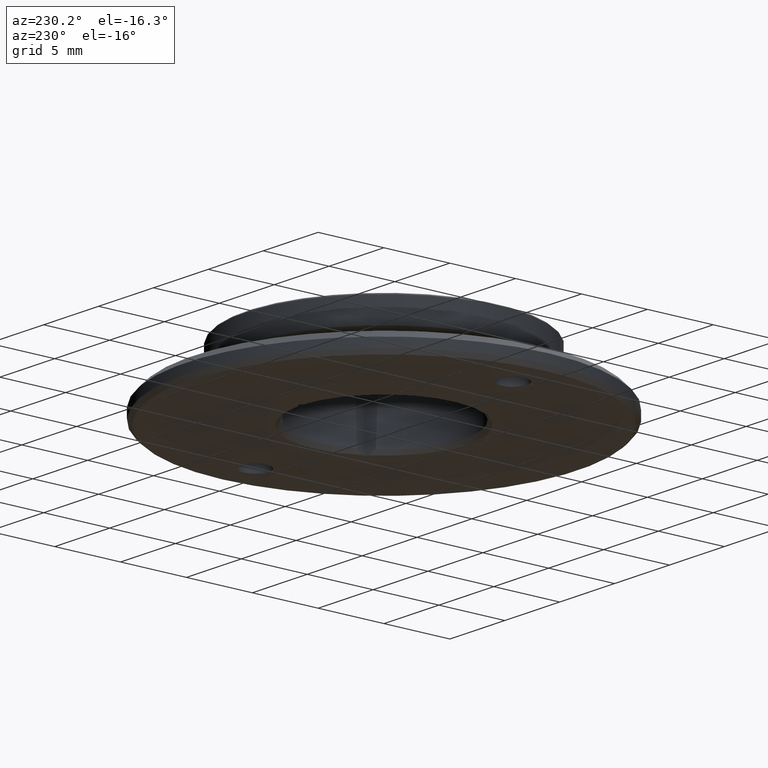
[diagram: clean part render]
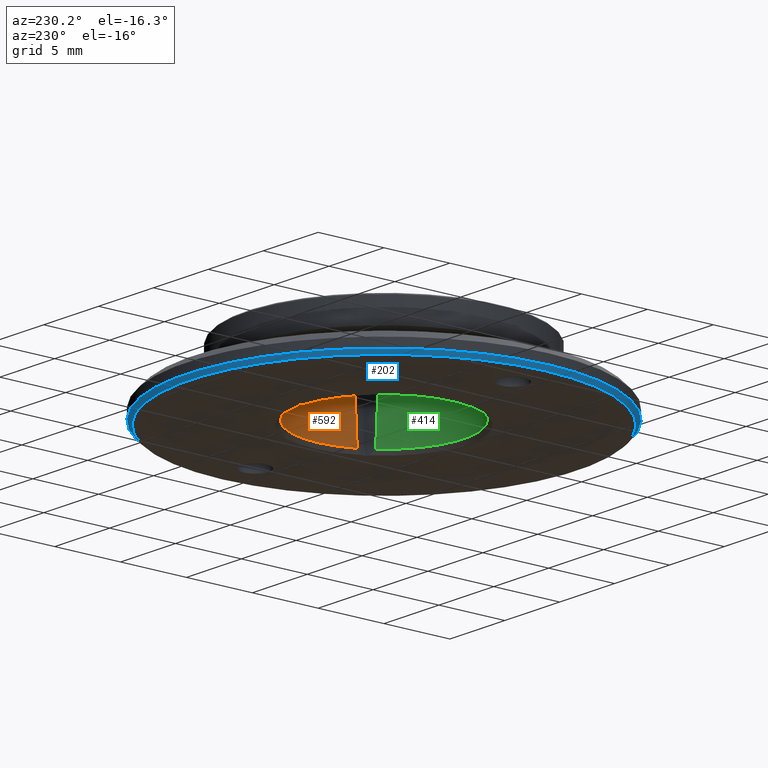
[diagram: same view with three faces highlighted in distinct colors, each labeled with its STEP entity id]
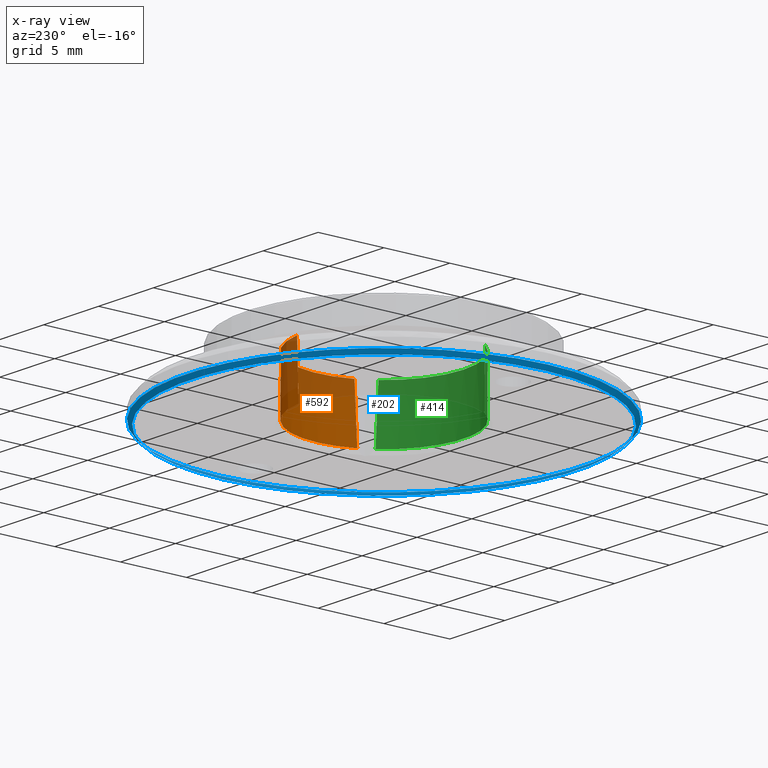
[diagram: x-ray of the same camera — body ghosted, the three highlighted faces saturated]
A machine part, auxiliary view with three faces highlighted in distinct colors.
The next image is the same camera in x-ray (body ghosted, the three faces saturated) — at least one of them is partly hidden behind the body in this view.
Their STEP definitions:

[orange] entity #592 — the highlighted cylindrical surface (partial cylindrical patch) has radius 6.05 mm, axis along (-0, -0, 1).
#29 = CARTESIAN_POINT ( 'NONE',  ( 0.5449629645617796170, 6.025405825938700666, -2.199999999999994404 ) ) ;
#38 = EDGE_CURVE ( 'NONE', #602, #643, #858, .T. ) ;
#46 = DIRECTION ( 'NONE',  ( 1.000000000000000000, 0.0000000000000000000, 0.0000000000000000000 ) ) ;
#49 = EDGE_LOOP ( 'NONE', ( #716, #487, #470, #235 ) ) ;
#77 = CARTESIAN_POINT ( 'NONE',  ( 0.7069815226384784657, 6.008550334868450804, 2.000000000000015099 ) ) ;
#103 = DIRECTION ( 'NONE',  ( -0.0000000000000000000, -0.0000000000000000000, 1.000000000000000000 ) ) ;
#129 = VERTEX_POINT ( 'NONE', #29 ) ;
#147 = EDGE_CURVE ( 'NONE', #602, #129, #171, .T. ) ;
#171 = CIRCLE ( 'NONE', #387, 6.049999999999999822 ) ;
#176 = DIRECTION ( 'NONE',  ( -0.0000000000000000000, -0.0000000000000000000, 1.000000000000000000 ) ) ;
#228 = CARTESIAN_POINT ( 'NONE',  ( 5.490635995654580270, -2.540751141537131108, -2.199999999999994404 ) ) ;
#235 = ORIENTED_EDGE ( 'NONE', *, *, #38, .T. ) ;
#238 = CARTESIAN_POINT ( 'NONE',  ( 0.0000000000000000000, 0.0000000000000000000, 3.500000000000002220 ) ) ;
#304 = CARTESIAN_POINT ( 'NONE',  ( 0.0000000000000000000, 0.0000000000000000000, 2.000000000000000888 ) ) ;
#307 = CARTESIAN_POINT ( 'NONE',  ( 5.490635995654580270, -2.540751141537131108, -2.199999999999994404 ) ) ;
#387 = AXIS2_PLACEMENT_3D ( 'NONE', #857, #834, #790 ) ;
#398 = EDGE_CURVE ( 'NONE', #399, #129, #464, .T. ) ;
#399 = VERTEX_POINT ( 'NONE', #488 ) ;
#464 =( BOUNDED_CURVE ( )  B_SPLINE_CURVE ( 3, ( #77, #480, #616, #837 ),
 .UNSPECIFIED., .F., .T. ) 
 B_SPLINE_CURVE_WITH_KNOTS ( ( 4, 4 ),
 ( 0.6682741115155272915, 0.6951993832339711243 ),
 .UNSPECIFIED. ) 
 CURVE ( )  GEOMETRIC_REPRESENTATION_ITEM ( )  RATIONAL_B_SPLINE_CURVE ( ( 1.000000000000000000, 0.9999395867243703329, 0.9999395867243703329, 1.000000000000000000 ) ) 
 REPRESENTATION_ITEM ( '' )  );
#470 = ORIENTED_EDGE ( 'NONE', *, *, #147, .F. ) ;
#480 = CARTESIAN_POINT ( 'NONE',  ( 0.6530526101212259515, 6.014895749745719833, 0.6232676519637768697 ) ) ;
#487 = ORIENTED_EDGE ( 'NONE', *, *, #398, .T. ) ;
#488 = CARTESIAN_POINT ( 'NONE',  ( 0.7069815226384784657, 6.008550334868450804, 2.000000000000015099 ) ) ;
#501 = EDGE_CURVE ( 'NONE', #643, #399, #776, .T. ) ;
#504 = DIRECTION ( 'NONE',  ( 1.000000000000000000, 0.0000000000000000000, 0.0000000000000000000 ) ) ;
#579 = FACE_OUTER_BOUND ( 'NONE', #49, .T. ) ;
#582 = CARTESIAN_POINT ( 'NONE',  ( 5.513440156126522496, -2.491470697541275037, -0.7768169317320064993 ) ) ;
#592 = ADVANCED_FACE ( 'NONE', ( #579 ), #788, .F. ) ;
#596 = CARTESIAN_POINT ( 'NONE',  ( 5.557047991232830775, -2.392011208823061619, 2.000000000000001332 ) ) ;
#602 = VERTEX_POINT ( 'NONE', #307 ) ;
#612 = AXIS2_PLACEMENT_3D ( 'NONE', #304, #103, #504 ) ;
#616 = CARTESIAN_POINT ( 'NONE',  ( 0.5990431612079351043, 6.020514586221453968, -0.7768169317321043099 ) ) ;
#633 = AXIS2_PLACEMENT_3D ( 'NONE', #238, #176, #46 ) ;
#643 = VERTEX_POINT ( 'NONE', #596 ) ;
#716 = ORIENTED_EDGE ( 'NONE', *, *, #501, .T. ) ;
#771 = CARTESIAN_POINT ( 'NONE',  ( 5.557047991232830775, -2.392011208823061619, 2.000000000000001332 ) ) ;
#776 = CIRCLE ( 'NONE', #612, 6.049999999999999822 ) ;
#788 = CYLINDRICAL_SURFACE ( 'NONE', #633, 6.049999999999999822 ) ;
#790 = DIRECTION ( 'NONE',  ( 1.000000000000000000, 0.0000000000000000000, 0.0000000000000000000 ) ) ;
#793 = CARTESIAN_POINT ( 'NONE',  ( 5.535578825455472085, -2.441887724500102053, 0.6232676519638139512 ) ) ;
#834 = DIRECTION ( 'NONE',  ( -0.0000000000000000000, -0.0000000000000000000, 1.000000000000000000 ) ) ;
#837 = CARTESIAN_POINT ( 'NONE',  ( 0.5449629645617796170, 6.025405825938700666, -2.199999999999994404 ) ) ;
#857 = CARTESIAN_POINT ( 'NONE',  ( 0.0000000000000000000, 0.0000000000000000000, -2.199999999999994404 ) ) ;
#858 =( BOUNDED_CURVE ( )  B_SPLINE_CURVE ( 3, ( #228, #582, #793, #771 ),
 .UNSPECIFIED., .F., .T. ) 
 B_SPLINE_CURVE_WITH_KNOTS ( ( 4, 4 ),
 ( 5.587985923945605116, 5.614911195664047838 ),
 .UNSPECIFIED. ) 
 CURVE ( )  GEOMETRIC_REPRESENTATION_ITEM ( )  RATIONAL_B_SPLINE_CURVE ( ( 1.000000000000000000, 0.9999395867243703329, 0.9999395867243703329, 1.000000000000000000 ) ) 
 REPRESENTATION_ITEM ( '' )  );

[blue] entity #202 — the highlighted conical surface has half-angle 45 deg.
#4 = FACE_OUTER_BOUND ( 'NONE', #522, .T. ) ;
#48 = AXIS2_PLACEMENT_3D ( 'NONE', #765, #160, #541 ) ;
#71 = DIRECTION ( 'NONE',  ( 1.000000000000000000, 0.0000000000000000000, 0.0000000000000000000 ) ) ;
#159 = CIRCLE ( 'NONE', #628, 14.70000000000000462 ) ;
#160 = DIRECTION ( 'NONE',  ( -0.0000000000000000000, -0.0000000000000000000, 1.000000000000000000 ) ) ;
#189 = DIRECTION ( 'NONE',  ( 1.000000000000000000, 0.0000000000000000000, 0.0000000000000000000 ) ) ;
#202 = ADVANCED_FACE ( 'NONE', ( #4, #671 ), #317, .T. ) ;
#226 = ORIENTED_EDGE ( 'NONE', *, *, #451, .F. ) ;
#258 = CARTESIAN_POINT ( 'NONE',  ( 15.00000000000000000, 0.0000000000000000000, -2.199999999999994404 ) ) ;
#266 = CARTESIAN_POINT ( 'NONE',  ( 0.0000000000000000000, 0.0000000000000000000, -2.500000000000003109 ) ) ;
#277 = EDGE_CURVE ( 'NONE', #418, #418, #159, .T. ) ;
#317 = CONICAL_SURFACE ( 'NONE', #813, 14.70000000000000462, 0.7853981633974251864 ) ;
#319 = CIRCLE ( 'NONE', #48, 15.00000000000000000 ) ;
#418 = VERTEX_POINT ( 'NONE', #826 ) ;
#451 = EDGE_CURVE ( 'NONE', #614, #614, #319, .T. ) ;
#522 = EDGE_LOOP ( 'NONE', ( #226 ) ) ;
#541 = DIRECTION ( 'NONE',  ( 1.000000000000000000, 0.0000000000000000000, 0.0000000000000000000 ) ) ;
#590 = ORIENTED_EDGE ( 'NONE', *, *, #277, .T. ) ;
#598 = CARTESIAN_POINT ( 'NONE',  ( 0.0000000000000000000, 0.0000000000000000000, -2.500000000000003109 ) ) ;
#614 = VERTEX_POINT ( 'NONE', #258 ) ;
#628 = AXIS2_PLACEMENT_3D ( 'NONE', #598, #679, #71 ) ;
#671 = FACE_BOUND ( 'NONE', #848, .T. ) ;
#679 = DIRECTION ( 'NONE',  ( -0.0000000000000000000, -0.0000000000000000000, 1.000000000000000000 ) ) ;
#732 = DIRECTION ( 'NONE',  ( -0.0000000000000000000, -0.0000000000000000000, 1.000000000000000000 ) ) ;
#765 = CARTESIAN_POINT ( 'NONE',  ( 0.0000000000000000000, 0.0000000000000000000, -2.199999999999994404 ) ) ;
#813 = AXIS2_PLACEMENT_3D ( 'NONE', #266, #732, #189 ) ;
#826 = CARTESIAN_POINT ( 'NONE',  ( 14.70000000000000462, 0.0000000000000000000, -2.500000000000003109 ) ) ;
#848 = EDGE_LOOP ( 'NONE', ( #590 ) ) ;

[green] entity #414 — the highlighted cylindrical surface (partial cylindrical patch) has radius 6.05 mm, axis along (-0, -0, 1).
#12 = CARTESIAN_POINT ( 'NONE',  ( 4.850066468594370406, -3.616539126045306141, 2.000000000000015099 ) ) ;
#21 = CARTESIAN_POINT ( 'NONE',  ( -4.945673031092773009, -3.484654684401544689, -2.199999999999994404 ) ) ;
#23 =( BOUNDED_CURVE ( )  B_SPLINE_CURVE ( 3, ( #236, #497, #371, #168 ),
 .UNSPECIFIED., .F., .T. ) 
 B_SPLINE_CURVE_WITH_KNOTS ( ( 4, 4 ),
 ( 5.587985923945604227, 5.614911195664047838 ),
 .UNSPECIFIED. ) 
 CURVE ( )  GEOMETRIC_REPRESENTATION_ITEM ( )  RATIONAL_B_SPLINE_CURVE ( ( 1.000000000000000000, 0.9999395867243703329, 0.9999395867243703329, 1.000000000000000000 ) ) 
 REPRESENTATION_ITEM ( '' )  );
#149 = VERTEX_POINT ( 'NONE', #651 ) ;
#155 = CARTESIAN_POINT ( 'NONE',  ( 4.945673031092814753, -3.484654684401483848, -2.199999999999993960 ) ) ;
#161 = CIRCLE ( 'NONE', #670, 6.049999999999999822 ) ;
#168 = CARTESIAN_POINT ( 'NONE',  ( -4.850066468594325109, -3.616539126045364760, 2.000000000000015099 ) ) ;
#227 = CYLINDRICAL_SURFACE ( 'NONE', #232, 6.049999999999999822 ) ;
#232 = AXIS2_PLACEMENT_3D ( 'NONE', #278, #558, #775 ) ;
#236 = CARTESIAN_POINT ( 'NONE',  ( -4.945673031092773009, -3.484654684401544689, -2.199999999999994404 ) ) ;
#250 = EDGE_LOOP ( 'NONE', ( #275, #572, #314, #618 ) ) ;
#270 = AXIS2_PLACEMENT_3D ( 'NONE', #640, #849, #570 ) ;
#272 = CARTESIAN_POINT ( 'NONE',  ( 4.914396994918600825, -3.529043888680089669, -0.7768169317321378387 ) ) ;
#275 = ORIENTED_EDGE ( 'NONE', *, *, #433, .F. ) ;
#278 = CARTESIAN_POINT ( 'NONE',  ( 0.0000000000000000000, 0.0000000000000000000, 3.500000000000002220 ) ) ;
#314 = ORIENTED_EDGE ( 'NONE', *, *, #526, .T. ) ;
#324 = VERTEX_POINT ( 'NONE', #332 ) ;
#332 = CARTESIAN_POINT ( 'NONE',  ( 4.945673031092814753, -3.484654684401483848, -2.199999999999993960 ) ) ;
#371 = CARTESIAN_POINT ( 'NONE',  ( -4.882526215334218378, -3.573008025245587138, 0.6232676519636580759 ) ) ;
#375 = VERTEX_POINT ( 'NONE', #484 ) ;
#406 = CIRCLE ( 'NONE', #270, 6.049999999999999822 ) ;
#414 = ADVANCED_FACE ( 'NONE', ( #626 ), #227, .F. ) ;
#433 = EDGE_CURVE ( 'NONE', #825, #324, #161, .T. ) ;
#442 = EDGE_CURVE ( 'NONE', #375, #324, #620, .T. ) ;
#484 = CARTESIAN_POINT ( 'NONE',  ( 4.850066468594370406, -3.616539126045306141, 2.000000000000015099 ) ) ;
#497 = CARTESIAN_POINT ( 'NONE',  ( -4.914396994918559081, -3.529043888680147845, -0.7768169317322080047 ) ) ;
#526 = EDGE_CURVE ( 'NONE', #149, #375, #406, .T. ) ;
#540 = EDGE_CURVE ( 'NONE', #825, #149, #23, .T. ) ;
#558 = DIRECTION ( 'NONE',  ( -0.0000000000000000000, -0.0000000000000000000, 1.000000000000000000 ) ) ;
#570 = DIRECTION ( 'NONE',  ( 1.000000000000000000, 0.0000000000000000000, 0.0000000000000000000 ) ) ;
#572 = ORIENTED_EDGE ( 'NONE', *, *, #540, .T. ) ;
#610 = CARTESIAN_POINT ( 'NONE',  ( 0.0000000000000000000, 0.0000000000000000000, -2.199999999999994404 ) ) ;
#618 = ORIENTED_EDGE ( 'NONE', *, *, #442, .T. ) ;
#620 =( BOUNDED_CURVE ( )  B_SPLINE_CURVE ( 3, ( #12, #636, #272, #155 ),
 .UNSPECIFIED., .F., .T. ) 
 B_SPLINE_CURVE_WITH_KNOTS ( ( 4, 4 ),
 ( 0.6682741115155274025, 0.6951993832339711243 ),
 .UNSPECIFIED. ) 
 CURVE ( )  GEOMETRIC_REPRESENTATION_ITEM ( )  RATIONAL_B_SPLINE_CURVE ( ( 1.000000000000000000, 0.9999395867243703329, 0.9999395867243703329, 1.000000000000000000 ) ) 
 REPRESENTATION_ITEM ( '' )  );
#626 = FACE_OUTER_BOUND ( 'NONE', #250, .T. ) ;
#636 = CARTESIAN_POINT ( 'NONE',  ( 4.882526215334261899, -3.573008025245530295, 0.6232676519637270207 ) ) ;
#640 = CARTESIAN_POINT ( 'NONE',  ( 0.0000000000000000000, 0.0000000000000000000, 2.000000000000000888 ) ) ;
#651 = CARTESIAN_POINT ( 'NONE',  ( -4.850066468594325109, -3.616539126045364760, 2.000000000000015099 ) ) ;
#670 = AXIS2_PLACEMENT_3D ( 'NONE', #610, #768, #683 ) ;
#683 = DIRECTION ( 'NONE',  ( 1.000000000000000000, 0.0000000000000000000, 0.0000000000000000000 ) ) ;
#768 = DIRECTION ( 'NONE',  ( -0.0000000000000000000, -0.0000000000000000000, 1.000000000000000000 ) ) ;
#775 = DIRECTION ( 'NONE',  ( 1.000000000000000000, 0.0000000000000000000, 0.0000000000000000000 ) ) ;
#825 = VERTEX_POINT ( 'NONE', #21 ) ;
#849 = DIRECTION ( 'NONE',  ( -0.0000000000000000000, -0.0000000000000000000, 1.000000000000000000 ) ) ;